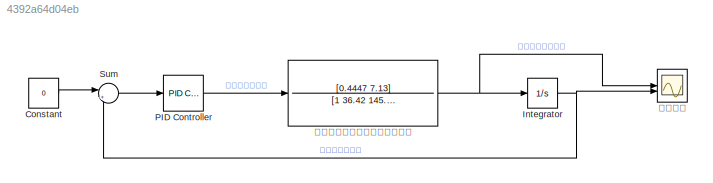
MODEL slx_4392a64d04eb
KIND model
CONFIG AbsTol = auto
CONFIG EnableMultiTasking = off
CONFIG FixedStep = auto
CONFIG MaxStep = auto
CONFIG MinStep = auto
CONFIG RelTol = 1e-3
CONFIG SampleTimeConstraint = Unconstrained
CONFIG SolverName = VariableStepAuto
CONFIG StartTime = 0.0
CONFIG StopTime = 2
BLOCK [Constant] Constant
  Value = 0
BLOCK [Integrator] Integrator
  InitialCondition = 1
BLOCK [Reference] PID Controller  REF=slpidlib/PID Controller
  LibrarySourceBlock = simulink/Continuous/PID Controller
  SourceBlock = slpidlib/PID Controller
  SourceType = PID 1dof
BLOCK [Sum] Sum
  Inputs = |+-
BLOCK [TransferFcn] ロボットの回転方向の伝達関数
  Denominator = [1 36.42 145.2]
  Numerator = [0.4447 7.13]
BLOCK [Scope] 単ループ
  Floating = off
  NumInputPorts = 2
  ScopeSpecificationString = Simulink.scopes.TimeScopeBlockCfg('CurrentConfiguration', extmgr.ConfigurationSet(extmgr.Configuration('Core','General UI',true),extmgr.Configuration('Core','Source UI',true),extmgr.Configuration('Sources','WiredSimulink',true),extmgr.Configuration('Visuals','Time Domain',true,'SerializedDisplays',{struct('MinYLimReal','-7.92917','MaxYLimReal','1.25483','YLabelReal','','MinYLimMag','0.00000','MaxY...<+2026ch>
LINE Constant:1 -> Sum:1
NET Integrator:1 -> Sum:2, 単ループ:2
LINE PID Controller:1 -> ロボットの回転方向の伝達関数:1
LINE Sum:1 -> PID Controller:1
NET ロボットの回転方向の伝達関数:1 -> Integrator:1, 単ループ:1
note: NET lines group one-source signal fan-out (src -> all destinations, sorted); 1:1 wires keep LINE
